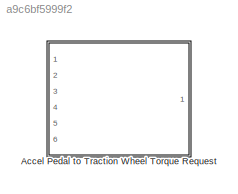
MODEL slx_a9c6bf5999f2
KIND model
CONFIG AbsTol = auto
CONFIG EnableMultiTasking = off
CONFIG FixedStep = auto
CONFIG MaxStep = auto
CONFIG MinStep = auto
CONFIG RelTol = 1e-3
CONFIG SampleTimeConstraint = Unconstrained
CONFIG Solver = VariableStepAuto
CONFIG SolverName = VariableStepAuto
CONFIG StartTime = 0.0
CONFIG StopTime = 10.0
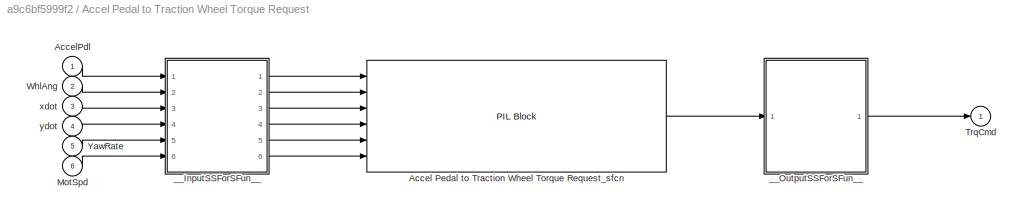
BLOCK [SubSystem] Accel Pedal to Traction Wheel Torque Request
  DialogController = pil_create_dialog
  LoadFcn = try\n   if ~strcmp(rtw.pil.getPILVersion, '9.7 (R2019b)_13')\n      set_param(gcb, 'DialogController', '');\n      set_param(gcb, 'DialogControllerArgs', '');\n   end\ncatch e\n      set_param(gcb, 'DialogController', '');\n      set_param(gcb, 'DialogControllerArgs', '');\nend
  Ports = [6, 1]
  RequestExecContextInheritance = off
BLOCK [Reference] Accel Pedal to Traction Wheel Torque Request/Accel Pedal to Traction Wheel Torque Request_sfcn  REF=pil_lib/PIL Block
  Ports = [6, 1]
  SourceBlock = pil_lib/PIL Block
  SourceProductBaseCode = RT
  SourceProductName = Simulink Coder
  SourceType = XILBlock
BLOCK [Inport] Accel Pedal to Traction Wheel Torque Request/AccelPdl
  IconDisplay = Port number
BLOCK [Inport] Accel Pedal to Traction Wheel Torque Request/MotSpd
  IconDisplay = Port number
  Port = 6
BLOCK [Outport] Accel Pedal to Traction Wheel Torque Request/TrqCmd
  IconDisplay = Port number
  VectorParamsAs1DForOutWhenUnconnected = off
BLOCK [Inport] Accel Pedal to Traction Wheel Torque Request/WhlAng
  IconDisplay = Port number
  Port = 2
BLOCK [Inport] Accel Pedal to Traction Wheel Torque Request/YawRate
  IconDisplay = Port number
  Port = 5
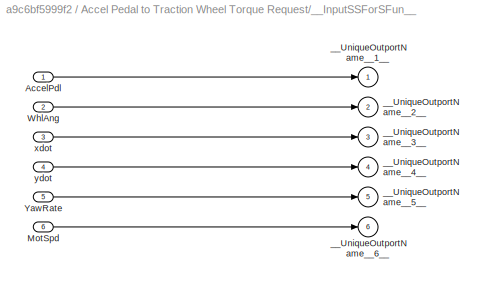
BLOCK [SubSystem] Accel Pedal to Traction Wheel Torque Request/__InputSSForSFun__
  PermitHierarchicalResolution = ExplicitOnly
  Ports = [6, 6]
  RequestExecContextInheritance = off
BLOCK [Inport] Accel Pedal to Traction Wheel Torque Request/__InputSSForSFun__/AccelPdl
  IconDisplay = Port number
BLOCK [Inport] Accel Pedal to Traction Wheel Torque Request/__InputSSForSFun__/MotSpd
  IconDisplay = Port number
  Port = 6
BLOCK [Inport] Accel Pedal to Traction Wheel Torque Request/__InputSSForSFun__/WhlAng
  IconDisplay = Port number
  Port = 2
BLOCK [Inport] Accel Pedal to Traction Wheel Torque Request/__InputSSForSFun__/YawRate
  IconDisplay = Port number
  Port = 5
BLOCK [Outport] Accel Pedal to Traction Wheel Torque Request/__InputSSForSFun__/__UniqueOutportName__1__
  IconDisplay = Port number
BLOCK [Outport] Accel Pedal to Traction Wheel Torque Request/__InputSSForSFun__/__UniqueOutportName__2__
  IconDisplay = Port number
  Port = 2
BLOCK [Outport] Accel Pedal to Traction Wheel Torque Request/__InputSSForSFun__/__UniqueOutportName__3__
  IconDisplay = Port number
  Port = 3
BLOCK [Outport] Accel Pedal to Traction Wheel Torque Request/__InputSSForSFun__/__UniqueOutportName__4__
  IconDisplay = Port number
  Port = 4
BLOCK [Outport] Accel Pedal to Traction Wheel Torque Request/__InputSSForSFun__/__UniqueOutportName__5__
  IconDisplay = Port number
  Port = 5
BLOCK [Outport] Accel Pedal to Traction Wheel Torque Request/__InputSSForSFun__/__UniqueOutportName__6__
  IconDisplay = Port number
  Port = 6
BLOCK [Inport] Accel Pedal to Traction Wheel Torque Request/__InputSSForSFun__/xdot
  IconDisplay = Port number
  Port = 3
BLOCK [Inport] Accel Pedal to Traction Wheel Torque Request/__InputSSForSFun__/ydot
  IconDisplay = Port number
  Port = 4
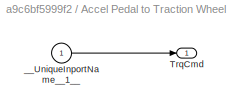
BLOCK [SubSystem] Accel Pedal to Traction Wheel Torque Request/__OutputSSForSFun__
  PermitHierarchicalResolution = ExplicitOnly
  Ports = [1, 1]
  RequestExecContextInheritance = off
BLOCK [Outport] Accel Pedal to Traction Wheel Torque Request/__OutputSSForSFun__/TrqCmd
  IconDisplay = Port number
  VectorParamsAs1DForOutWhenUnconnected = off
BLOCK [Inport] Accel Pedal to Traction Wheel Torque Request/__OutputSSForSFun__/__UniqueInportName__1__
  IconDisplay = Port number
BLOCK [Inport] Accel Pedal to Traction Wheel Torque Request/xdot
  IconDisplay = Port number
  Port = 3
BLOCK [Inport] Accel Pedal to Traction Wheel Torque Request/ydot
  IconDisplay = Port number
  Port = 4
LINE Accel Pedal to Traction Wheel Torque Request/Accel Pedal to Traction Wheel Torque Request_sfcn:1 -> Accel Pedal to Traction Wheel Torque Request/__OutputSSForSFun__:1
LINE Accel Pedal to Traction Wheel Torque Request/AccelPdl:1 -> Accel Pedal to Traction Wheel Torque Request/__InputSSForSFun__:1
LINE Accel Pedal to Traction Wheel Torque Request/MotSpd:1 -> Accel Pedal to Traction Wheel Torque Request/__InputSSForSFun__:6
LINE Accel Pedal to Traction Wheel Torque Request/WhlAng:1 -> Accel Pedal to Traction Wheel Torque Request/__InputSSForSFun__:2
LINE Accel Pedal to Traction Wheel Torque Request/YawRate:1 -> Accel Pedal to Traction Wheel Torque Request/__InputSSForSFun__:5
LINE Accel Pedal to Traction Wheel Torque Request/__InputSSForSFun__/AccelPdl:1 -> Accel Pedal to Traction Wheel Torque Request/__InputSSForSFun__/__UniqueOutportName__1__:1
LINE Accel Pedal to Traction Wheel Torque Request/__InputSSForSFun__/MotSpd:1 -> Accel Pedal to Traction Wheel Torque Request/__InputSSForSFun__/__UniqueOutportName__6__:1
LINE Accel Pedal to Traction Wheel Torque Request/__InputSSForSFun__/WhlAng:1 -> Accel Pedal to Traction Wheel Torque Request/__InputSSForSFun__/__UniqueOutportName__2__:1
LINE Accel Pedal to Traction Wheel Torque Request/__InputSSForSFun__/YawRate:1 -> Accel Pedal to Traction Wheel Torque Request/__InputSSForSFun__/__UniqueOutportName__5__:1
LINE Accel Pedal to Traction Wheel Torque Request/__InputSSForSFun__/xdot:1 -> Accel Pedal to Traction Wheel Torque Request/__InputSSForSFun__/__UniqueOutportName__3__:1
LINE Accel Pedal to Traction Wheel Torque Request/__InputSSForSFun__/ydot:1 -> Accel Pedal to Traction Wheel Torque Request/__InputSSForSFun__/__UniqueOutportName__4__:1
LINE Accel Pedal to Traction Wheel Torque Request/__InputSSForSFun__:1 -> Accel Pedal to Traction Wheel Torque Request/Accel Pedal to Traction Wheel Torque Request_sfcn:1
LINE Accel Pedal to Traction Wheel Torque Request/__InputSSForSFun__:2 -> Accel Pedal to Traction Wheel Torque Request/Accel Pedal to Traction Wheel Torque Request_sfcn:2
LINE Accel Pedal to Traction Wheel Torque Request/__InputSSForSFun__:3 -> Accel Pedal to Traction Wheel Torque Request/Accel Pedal to Traction Wheel Torque Request_sfcn:3
LINE Accel Pedal to Traction Wheel Torque Request/__InputSSForSFun__:4 -> Accel Pedal to Traction Wheel Torque Request/Accel Pedal to Traction Wheel Torque Request_sfcn:4
LINE Accel Pedal to Traction Wheel Torque Request/__InputSSForSFun__:5 -> Accel Pedal to Traction Wheel Torque Request/Accel Pedal to Traction Wheel Torque Request_sfcn:5
LINE Accel Pedal to Traction Wheel Torque Request/__InputSSForSFun__:6 -> Accel Pedal to Traction Wheel Torque Request/Accel Pedal to Traction Wheel Torque Request_sfcn:6
LINE Accel Pedal to Traction Wheel Torque Request/__OutputSSForSFun__/__UniqueInportName__1__:1 -> Accel Pedal to Traction Wheel Torque Request/__OutputSSForSFun__/TrqCmd:1
LINE Accel Pedal to Traction Wheel Torque Request/__OutputSSForSFun__:1 -> Accel Pedal to Traction Wheel Torque Request/TrqCmd:1
LINE Accel Pedal to Traction Wheel Torque Request/xdot:1 -> Accel Pedal to Traction Wheel Torque Request/__InputSSForSFun__:3
LINE Accel Pedal to Traction Wheel Torque Request/ydot:1 -> Accel Pedal to Traction Wheel Torque Request/__InputSSForSFun__:4
